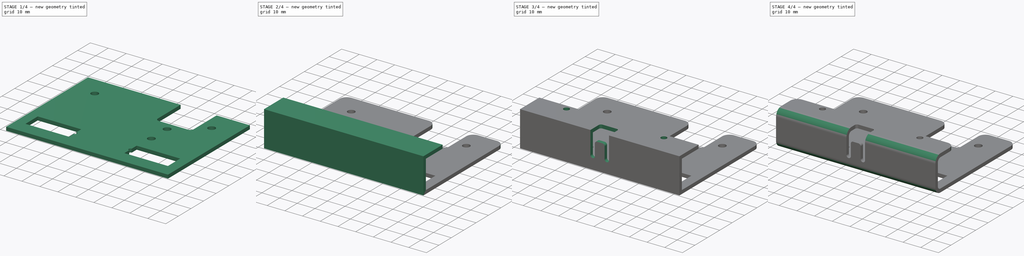
[diagram: build sequence overview — one tinted view per stage of 4, left to right]
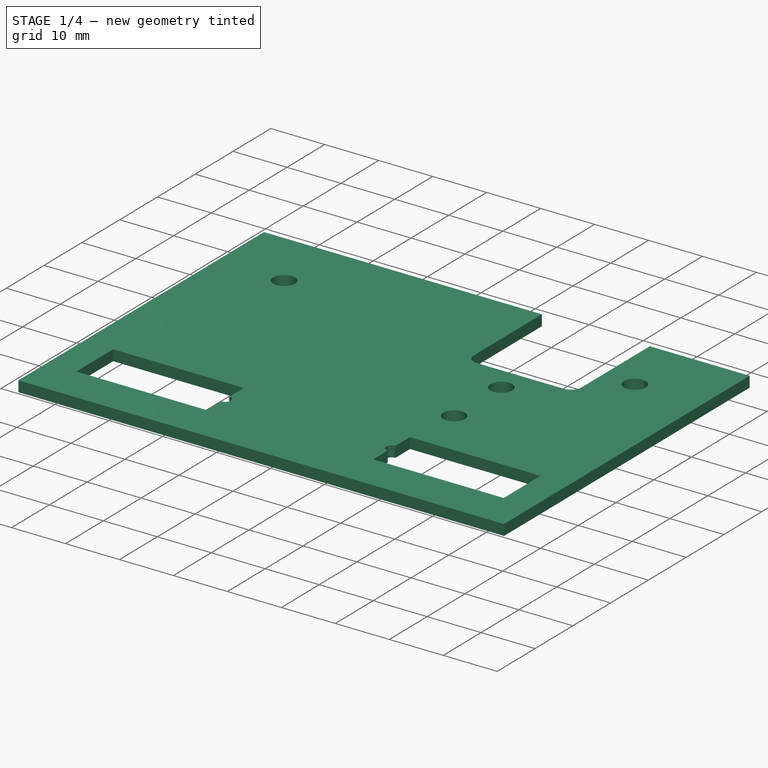
[diagram: stage 1 of 4 — iso view after this stage's code; geometry added in this stage tinted green]
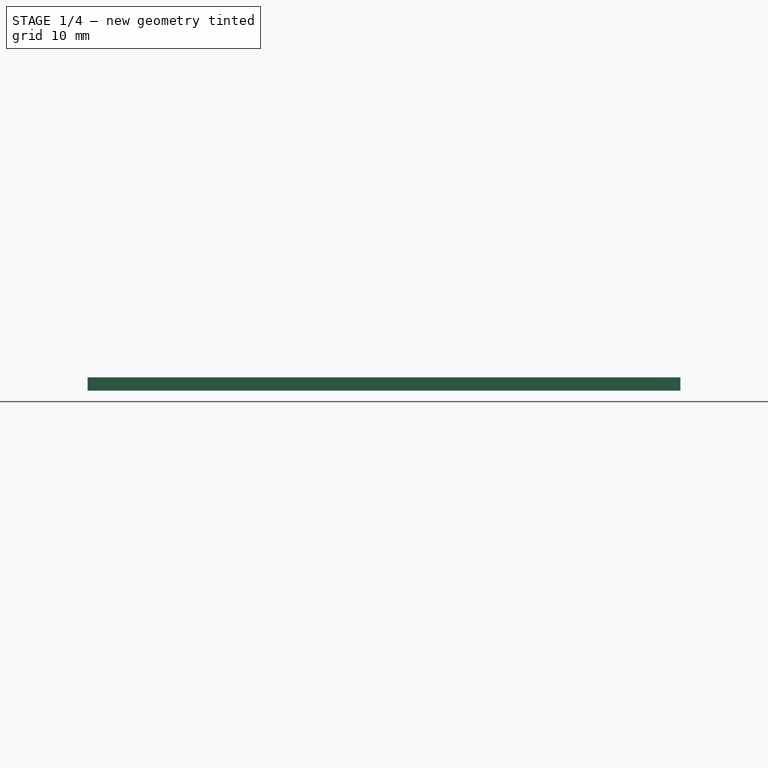
[diagram: stage 1 of 4 — front view after this stage's code; geometry added in this stage tinted green]
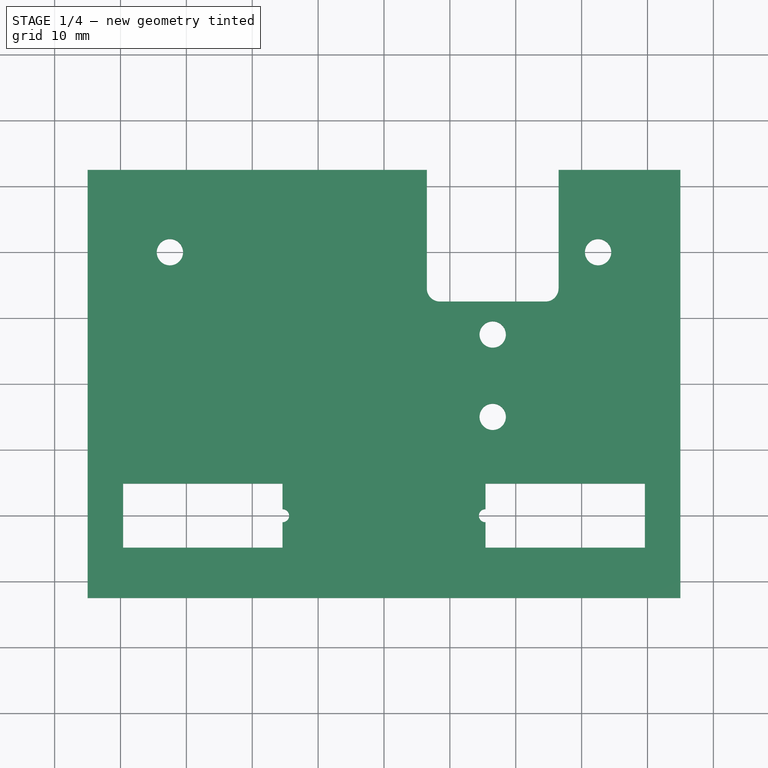
[diagram: stage 1 of 4 — top view after this stage's code; geometry added in this stage tinted green]
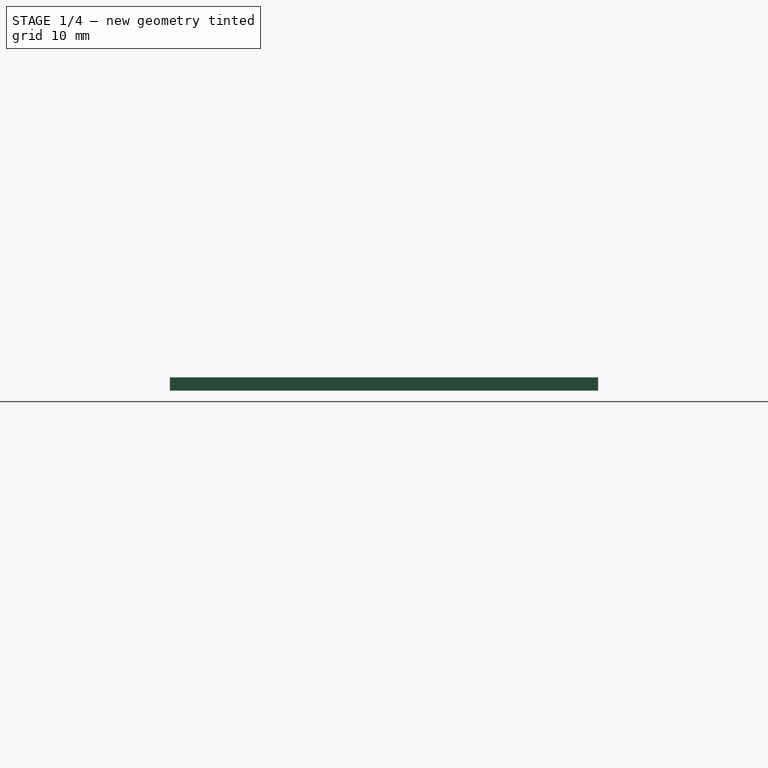
[diagram: stage 1 of 4 — right view after this stage's code; geometry added in this stage tinted green]
FCSTD DOCUMENT  (FreeCAD 0.14R3310 (Git))
Label: 72. PLACA LATERAL MOTOR_MIR
License: CC-BY 3.0
LicenseURL: http://creativecommons.org/licenses/by/3.0/
objects: Sketcher::SketchObject×5, PartDesign::Fillet×5, PartDesign::Pad×3, PartDesign::Pocket×2
note: 20 computed .brp shape members not serialized (recipe doc carries the construction recipe); baked Part::Feature solids carry a one-line shape summary decoded from their .brp

FEATURE [Sketcher::SketchObject] Sketch
  sketch-geometry (26):
    g0: LineSegment StartX=45 StartY=32.5 StartZ=0 EndX=45 EndY=-32.5 EndZ=0
    g1: LineSegment StartX=45 StartY=-32.5 StartZ=0 EndX=-45 EndY=-32.5 EndZ=0
    g2: LineSegment StartX=-45 StartY=-32.5 StartZ=0 EndX=-45 EndY=32.5 EndZ=0
    g3: Circle CenterX=-32.5 CenterY=20 CenterZ=0 NormalX=0 NormalY=0 NormalZ=1 Radius=2
    g4: Circle CenterX=32.5 CenterY=20 CenterZ=0 NormalX=0 NormalY=0 NormalZ=1 Radius=2
    g5: LineSegment StartX=26.5 StartY=32.5 StartZ=0 EndX=26.5 EndY=12.5 EndZ=0
    g6: LineSegment StartX=26.5 StartY=12.5 StartZ=0 EndX=6.5 EndY=12.5 EndZ=0
    g7: LineSegment StartX=6.5 StartY=12.5 StartZ=0 EndX=6.5 EndY=32.5 EndZ=0
    g8: LineSegment StartX=-45 StartY=32.5 StartZ=0 EndX=6.5 EndY=32.5 EndZ=0
    g9: LineSegment StartX=26.5 StartY=32.5 StartZ=0 EndX=45 EndY=32.5 EndZ=0
    g10: LineSegment StartX=-39.6 StartY=-15.12 StartZ=0 EndX=-15.4 EndY=-15.12 EndZ=0
    g11: LineSegment [constr] StartX=-15.4 StartY=-15.12 StartZ=0 EndX=-15.4 EndY=-24.87 EndZ=0
    g12: LineSegment StartX=-15.4 StartY=-24.87 StartZ=0 EndX=-39.6 EndY=-24.87 EndZ=0
    g13: LineSegment StartX=-39.6 StartY=-24.87 StartZ=0 EndX=-39.6 EndY=-15.12 EndZ=0
    g14: LineSegment StartX=15.4 StartY=-15.12 StartZ=0 EndX=39.6 EndY=-15.12 EndZ=0
    g15: LineSegment StartX=39.6 StartY=-15.12 StartZ=0 EndX=39.6 EndY=-24.87 EndZ=0
    g16: LineSegment StartX=39.6 StartY=-24.87 StartZ=0 EndX=15.4 EndY=-24.87 EndZ=0
    g17: LineSegment [constr] StartX=15.4 StartY=-24.87 StartZ=0 EndX=15.4 EndY=-15.12 EndZ=0
    g18: ArcOfCircle CenterX=-15.4 CenterY=-20 CenterZ=0 NormalX=0 NormalY=0 NormalZ=1 Radius=1 StartAngle=4.71239 EndAngle=7.85398
    g19: ArcOfCircle CenterX=15.4 CenterY=-20 CenterZ=0 NormalX=0 NormalY=0 NormalZ=1 Radius=1 StartAngle=1.5708 EndAngle=4.71239
    g20: LineSegment StartX=-15.4 StartY=-24.87 StartZ=0 EndX=-15.4 EndY=-21 EndZ=0
    g21: LineSegment StartX=15.4 StartY=-24.87 StartZ=0 EndX=15.4 EndY=-21 EndZ=0
    g22: LineSegment StartX=15.4 StartY=-19 StartZ=0 EndX=15.4 EndY=-15.12 EndZ=0
    g23: LineSegment StartX=-15.4 StartY=-19 StartZ=0 EndX=-15.4 EndY=-15.12 EndZ=0
    g24: Circle CenterX=16.5 CenterY=7.5 CenterZ=0 NormalX=0 NormalY=0 NormalZ=1 Radius=2
    g25: Circle CenterX=16.5 CenterY=-5 CenterZ=0 NormalX=0 NormalY=0 NormalZ=1 Radius=2
  constraints (74):
    c: Coincident(g0,g1)
    c: Coincident(g1,g2)
    c: Horizontal(g1)
    c: Vertical(g0)
    c: Vertical(g2)
    c: Symmetric(g0,g2,g-1)
    c: Distance(g0) = 65
    c: Coincident(g5,g6)
    c: Coincident(g6,g7)
    c: Horizontal(g6)
    c: Vertical(g5)
    c: Vertical(g7)
    c: Distance(g2) = 65
    c: Coincident(g8,g2)
    c: Coincident(g8,g7)
    c: Horizontal(g8)
    c: Coincident(g9,g5)
    c: Coincident(g9,g0)
    c: Horizontal(g9)
    c: Distance(g1) = 90
    c: Symmetric(g3,g4,g-2)
    c: Equal(g4,g3)
    c: Radius(g3) = 2
    c: Distance(g3,g8) = 12.5
    c: Distance(g3,g4) = 65
    c: Distance(g2,g7) = 51.5
    c: Distance(g6) = 20
    c: Distance(g7) = 20
    c: Coincident(g10,g11)
    c: Coincident(g11,g12)
    c: Coincident(g12,g13)
    c: Coincident(g13,g10)
    c: Horizontal(g10)
    c: Horizontal(g12)
    c: Vertical(g11)
    c: Vertical(g13)
    c: Coincident(g14,g15)
    c: Coincident(g15,g16)
    c: Coincident(g16,g17)
    c: Coincident(g17,g14)
    c: Horizontal(g14)
    c: Horizontal(g16)
    c: Vertical(g15)
    c: Vertical(g17)
    c: Symmetric(g16,g11,g-2)
    c: Symmetric(g14,g10,g-2)
    c: Distance(g10) = 24.2
    c: Distance(g13) = 9.75
    c: PointOnObject(g18,g11)
    c: PointOnObject(g18,g11)
    c: PointOnObject(g18,g11)
    c: PointOnObject(g19,g17)
    c: PointOnObject(g19,g17)
    c: PointOnObject(g19,g17)
    c: Equal(g18,g19)
    c: Radius(g18) = 1
    c: Coincident(g20,g11)
    c: Coincident(g20,g18)
    c: Coincident(g21,g19)
    c: Distance(g18,g12) = 4.87
    c: Distance(g12,g1) = 7.63
    c: Symmetric(g19,g18,g-2)
    c: Coincident(g16,g21)
    c: Distance(g19,g18) = 30.8
    c: Coincident(g22,g19)
    c: Coincident(g22,g14)
    c: Coincident(g23,g18)
    c: Coincident(g23,g10)
    c: Equal(g25,g24)
    c: Radius(g24) = 2
    c: Distance(g24,g5) = 10
    c: Distance(g25,g5) = 10
    c: Distance(g24,g6) = 5
    c: Distance(g25,g24) = 12.5
FEATURE [PartDesign::Pad] Pad
  Length = 2
  Length2 = 100
  Sketch = -> Sketch
  Type = 0
FEATURE [PartDesign::Fillet] Fillet
  Base = -> Pad [Edge20,Edge17]
  Radius = 0
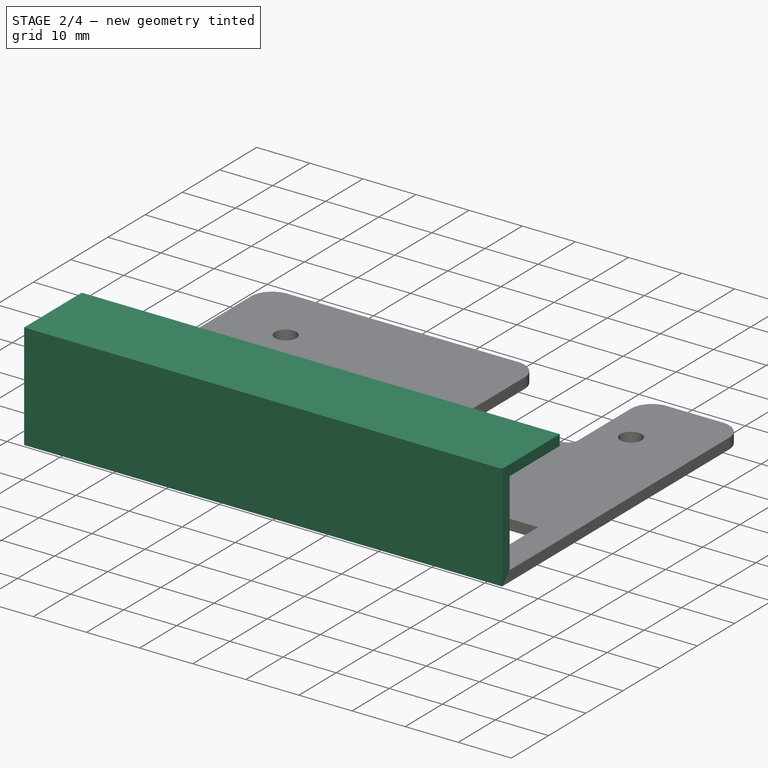
[diagram: stage 2 of 4 — iso view after this stage's code; geometry added in this stage tinted green]
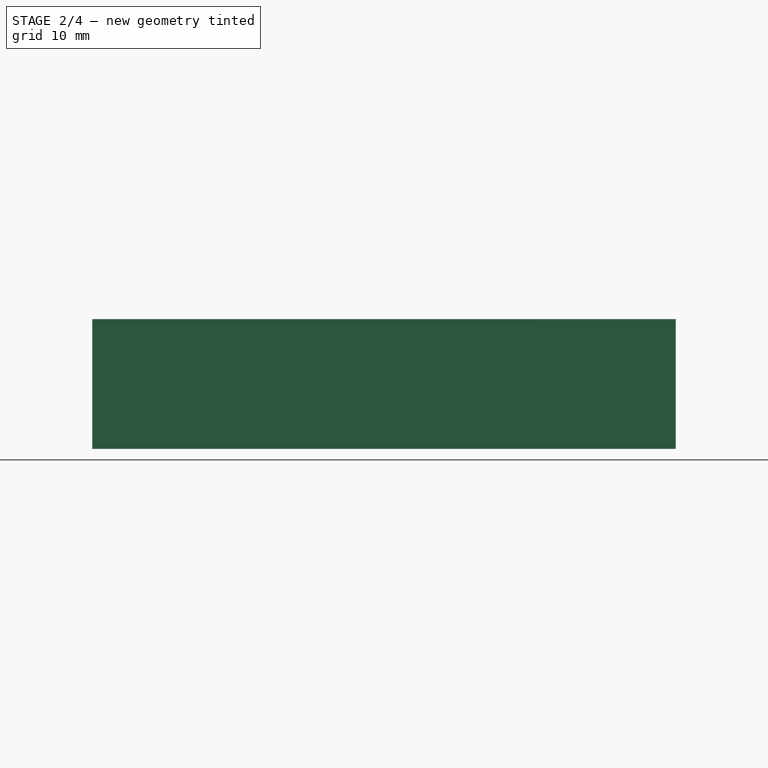
[diagram: stage 2 of 4 — front view after this stage's code; geometry added in this stage tinted green]
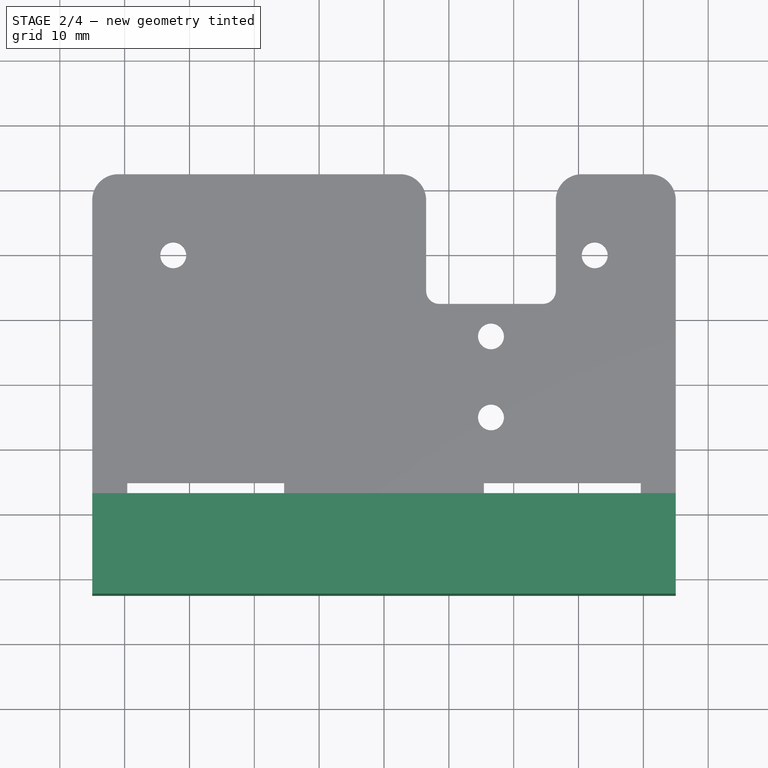
[diagram: stage 2 of 4 — top view after this stage's code; geometry added in this stage tinted green]
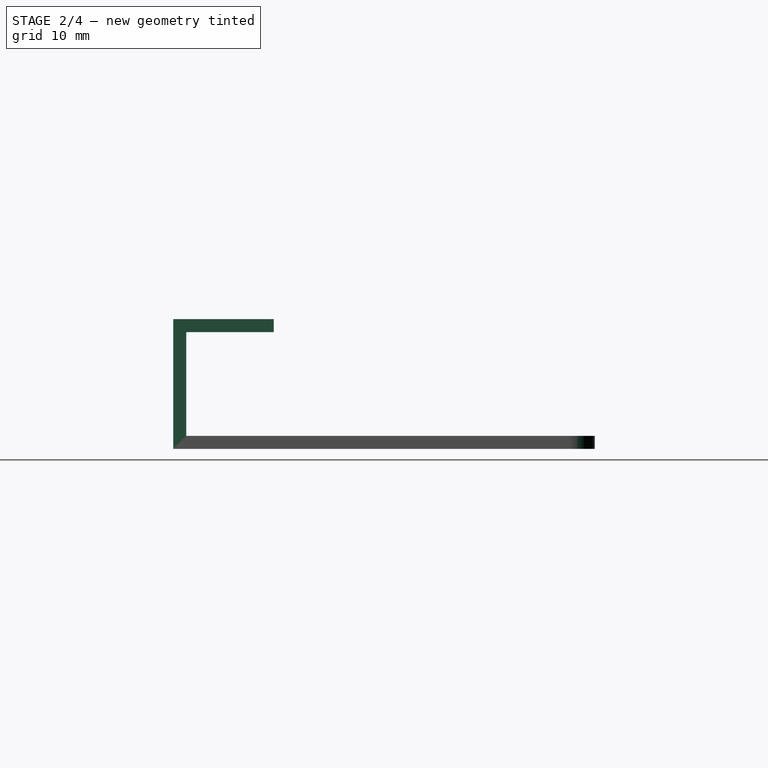
[diagram: stage 2 of 4 — right view after this stage's code; geometry added in this stage tinted green]
FEATURE [PartDesign::Fillet] Fillet001
  Base = -> Fillet [Edge62,Edge61,Edge3,Edge32]
  Radius = 4
FEATURE [Sketcher::SketchObject] Sketch001
  ExternalGeometry = -> [Fillet001]
  Placement = pos=(0,0,2) rot=(0,0,1;0rad)
  Support = -> Fillet001 [Face5]
  sketch-geometry (4):
    g0: LineSegment StartX=-45 StartY=-32.5 StartZ=0 EndX=45 EndY=-32.5 EndZ=0
    g1: LineSegment StartX=45 StartY=-32.5 StartZ=0 EndX=45 EndY=-30.5 EndZ=0
    g2: LineSegment StartX=45 StartY=-30.5 StartZ=0 EndX=-45 EndY=-30.5 EndZ=0
    g3: LineSegment StartX=-45 StartY=-30.5 StartZ=0 EndX=-45 EndY=-32.5 EndZ=0
  constraints (11):
    c: Coincident(g0,g1)
    c: Coincident(g1,g2)
    c: Coincident(g2,g3)
    c: Coincident(g3,g0)
    c: Horizontal(g0)
    c: Horizontal(g2)
    c: Vertical(g1)
    c: Vertical(g3)
    c: Coincident(g0,g-3)
    c: Coincident(g0,g-3)
    c: Distance(g3) = 2
FEATURE [PartDesign::Pad] Pad001
  Length = 16
  Length2 = 100
  Sketch = -> Sketch001
  Type = 0
FEATURE [Sketcher::SketchObject] Sketch002
  ExternalGeometry = -> [Pad001]
  Placement = pos=(0,0,18) rot=(0,0,1;0rad)
  Support = -> Pad001 [Face3]
  sketch-geometry (4):
    g0: LineSegment StartX=45 StartY=-32.5 StartZ=0 EndX=-45 EndY=-32.5 EndZ=0
    g1: LineSegment StartX=-45 StartY=-32.5 StartZ=0 EndX=-45 EndY=-17 EndZ=0
    g2: LineSegment StartX=-45 StartY=-17 StartZ=0 EndX=45 EndY=-17 EndZ=0
    g3: LineSegment StartX=45 StartY=-17 StartZ=0 EndX=45 EndY=-32.5 EndZ=0
  constraints (11):
    c: Coincident(g0,g1)
    c: Coincident(g1,g2)
    c: Coincident(g2,g3)
    c: Coincident(g3,g0)
    c: Horizontal(g0)
    c: Horizontal(g2)
    c: Vertical(g1)
    c: Vertical(g3)
    c: Coincident(g0,g-3)
    c: Coincident(g0,g-4)
    c: Distance(g1) = 15.5
FEATURE [PartDesign::Pad] Pad002
  Length = 2
  Length2 = 100
  Sketch = -> Sketch002
  Type = 0
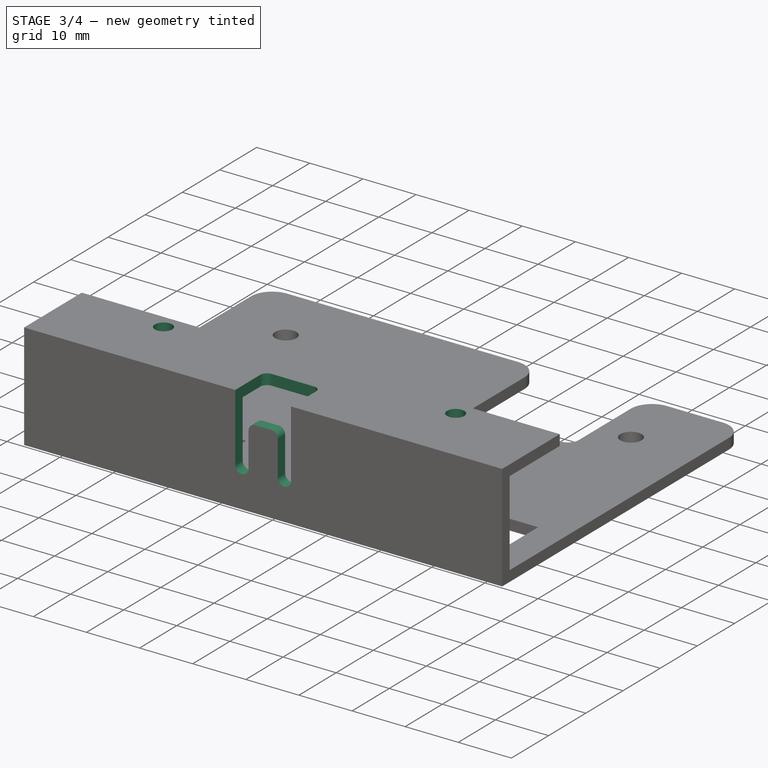
[diagram: stage 3 of 4 — iso view after this stage's code; geometry added in this stage tinted green]
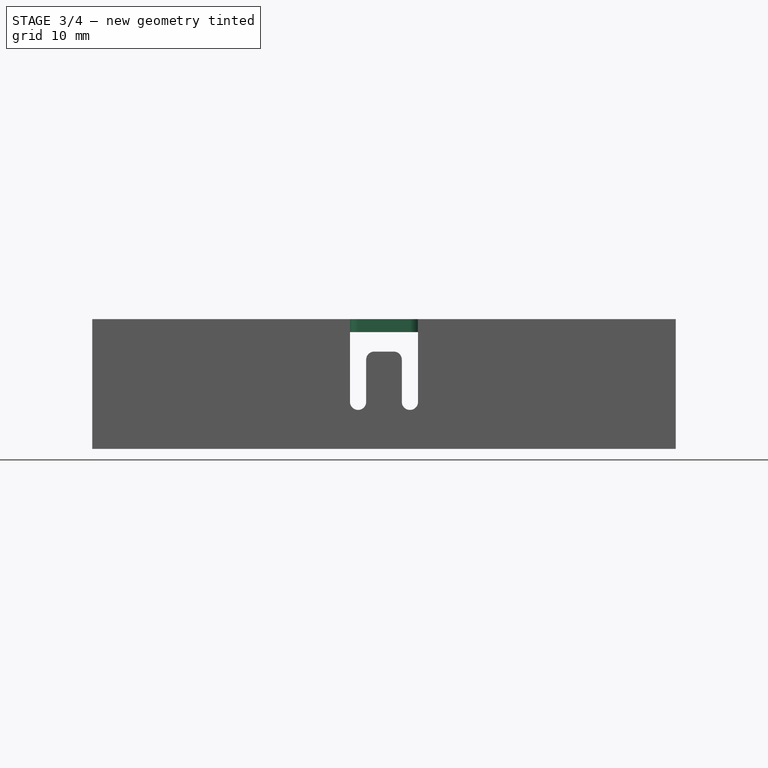
[diagram: stage 3 of 4 — front view after this stage's code; geometry added in this stage tinted green]
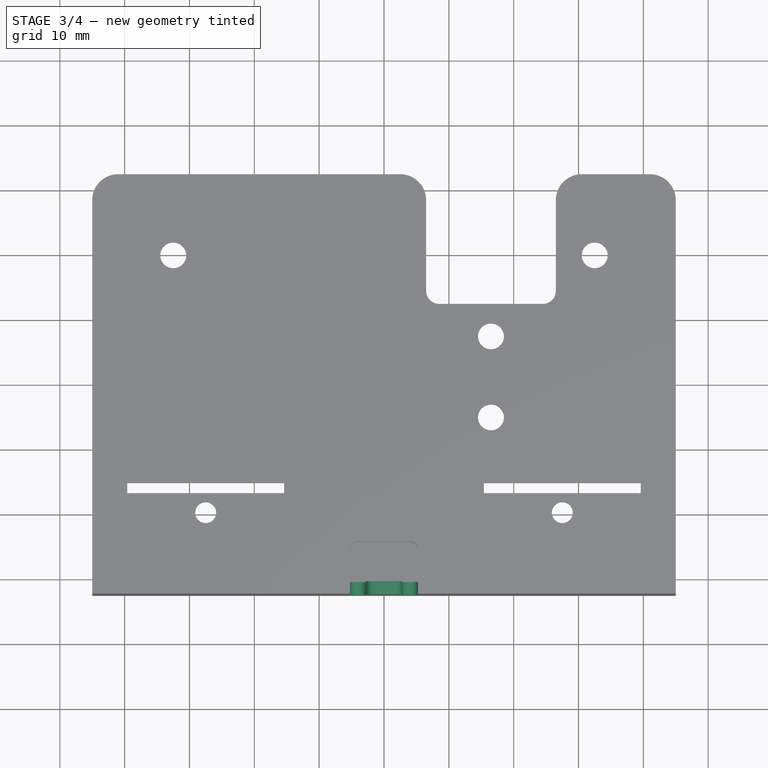
[diagram: stage 3 of 4 — top view after this stage's code; geometry added in this stage tinted green]
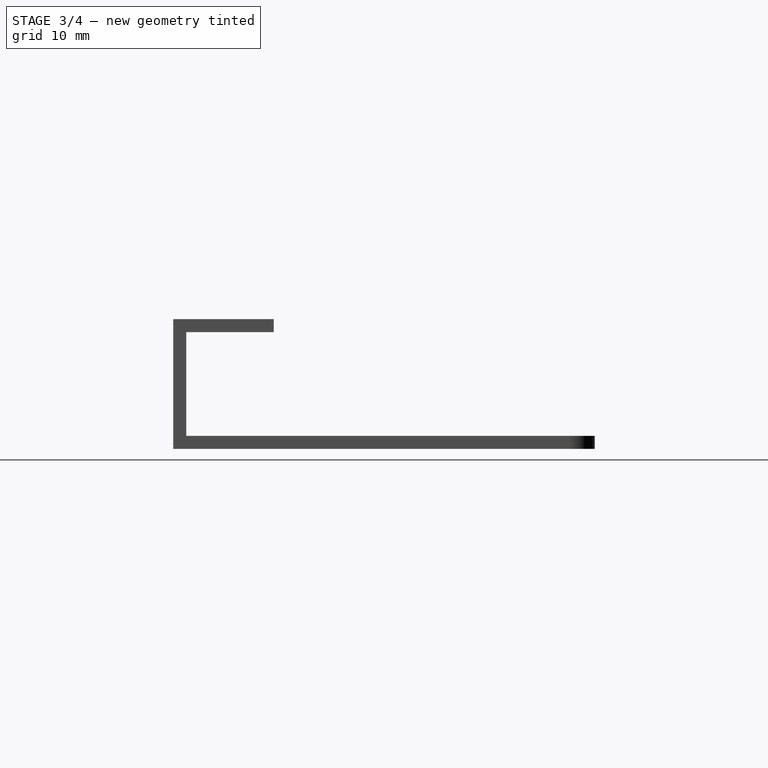
[diagram: stage 3 of 4 — right view after this stage's code; geometry added in this stage tinted green]
FEATURE [Sketcher::SketchObject] Sketch003
  ExternalGeometry = -> [Pad002]
  Placement = pos=(0,0,20) rot=(0,0,1;0rad)
  Support = -> Pad002 [Face33]
  sketch-geometry (2):
    g0: Circle CenterX=-27.5 CenterY=-20 CenterZ=0 NormalX=0 NormalY=0 NormalZ=1 Radius=1.62
    g1: Circle CenterX=27.5 CenterY=-20 CenterZ=0 NormalX=0 NormalY=0 NormalZ=1 Radius=1.62
  constraints (5):
    c: Symmetric(g1,g0,g-2)
    c: Equal(g0,g1)
    c: Radius(g0) = 1.62
    c: Distance(g0,g1) = 55
    c: Distance(g0,g-3) = 3
FEATURE [PartDesign::Pocket] Pocket
  Length = 5
  Sketch = -> Sketch003
  Type = 0
FEATURE [Sketcher::SketchObject] Sketch004
  ExternalGeometry = -> [Pocket]
  Placement = pos=(0,-32.5,0) rot=(1,0,0;1.5708rad)
  Support = -> Pocket [Face11]
  sketch-geometry (8):
    g0: LineSegment StartX=-5.25 StartY=20 StartZ=0 EndX=5.25 EndY=20 EndZ=0
    g1: LineSegment StartX=-5.25 StartY=20 StartZ=0 EndX=-5.25 EndY=7.25 EndZ=0
    g2: LineSegment StartX=5.25 StartY=20 StartZ=0 EndX=5.25 EndY=7.25 EndZ=0
    g3: ArcOfCircle CenterX=-4 CenterY=7.25 CenterZ=0 NormalX=0 NormalY=0 NormalZ=1 Radius=1.25 StartAngle=3.14159 EndAngle=6.28319
    g4: ArcOfCircle CenterX=4 CenterY=7.24999 CenterZ=0 NormalX=0 NormalY=0 NormalZ=1 Radius=1.25 StartAngle=3.14159 EndAngle=6.28319
    g5: LineSegment StartX=2.75 StartY=7.24999 StartZ=0 EndX=2.75 EndY=15 EndZ=0
    g6: LineSegment StartX=-2.75 StartY=7.25 StartZ=0 EndX=-2.75 EndY=15 EndZ=0
    g7: LineSegment StartX=-2.75 StartY=15 StartZ=0 EndX=2.75 EndY=15 EndZ=0
  constraints (26):
    c: PointOnObject(g0,g-3)
    c: PointOnObject(g0,g-3)
    c: Symmetric(g0,g0,g-2)
    c: Distance(g0,g0) = 10.5
    c: Coincident(g1,g0)
    c: Vertical(g1)
    c: Coincident(g2,g0)
    c: Vertical(g2)
    c: Coincident(g3,g1)
    c: Coincident(g4,g2)
    c: Tangent(g4,g2)
    c: Tangent(g3,g1)
    c: Equal(g1,g2)
    c: Distance(g1) = 12.75
    c: Radius(g3) = 1.25
    c: Equal(g4,g3)
    c: Coincident(g5,g4)
    c: Vertical(g5)
    c: Tangent(g4,g5)
    c: Coincident(g6,g3)
    c: Vertical(g6)
    c: Tangent(g3,g6)
    c: Coincident(g7,g6)
    c: Horizontal(g7)
    c: Coincident(g5,g7)
    c: Distance(g5,g0) = 5
FEATURE [PartDesign::Pocket] Pocket001
  Length = 8
  Sketch = -> Sketch004
  Type = 0
FEATURE [PartDesign::Fillet] Fillet002
  Base = -> Pocket001 [Edge133,Edge132,Edge130,Edge136]
  Radius = 1.25
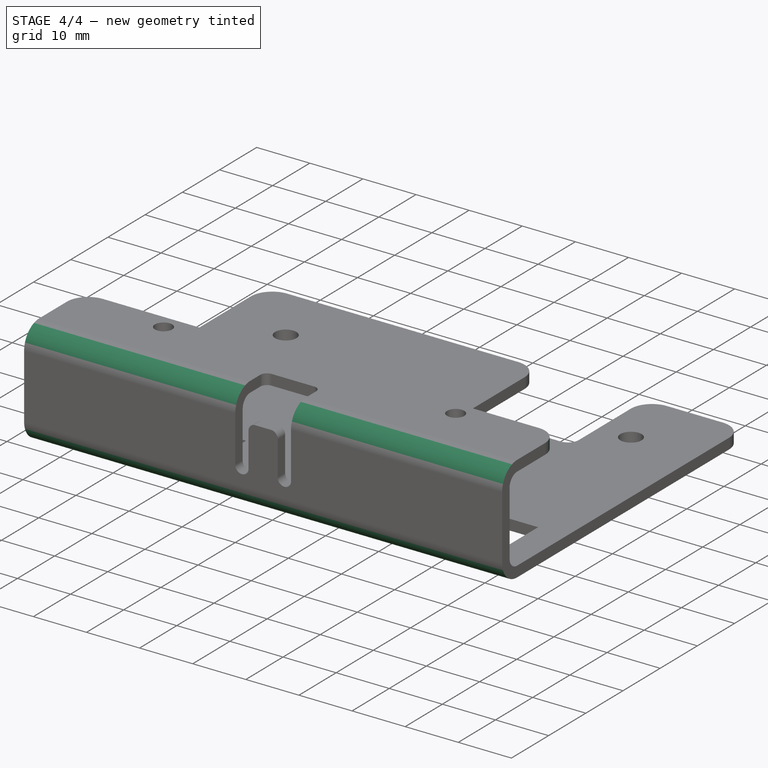
[diagram: stage 4 of 4 — iso view after this stage's code; geometry added in this stage tinted green]
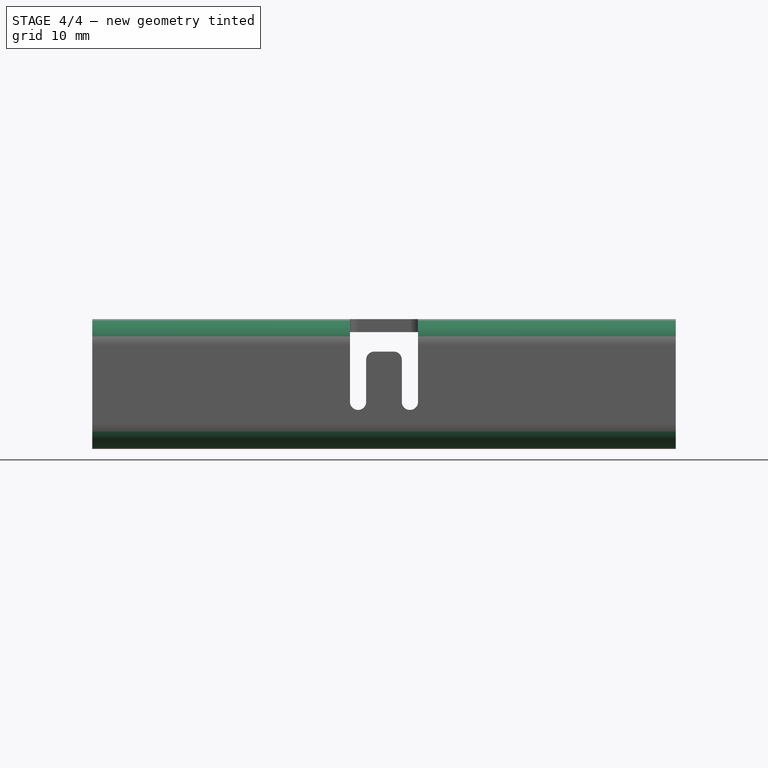
[diagram: stage 4 of 4 — front view after this stage's code; geometry added in this stage tinted green]
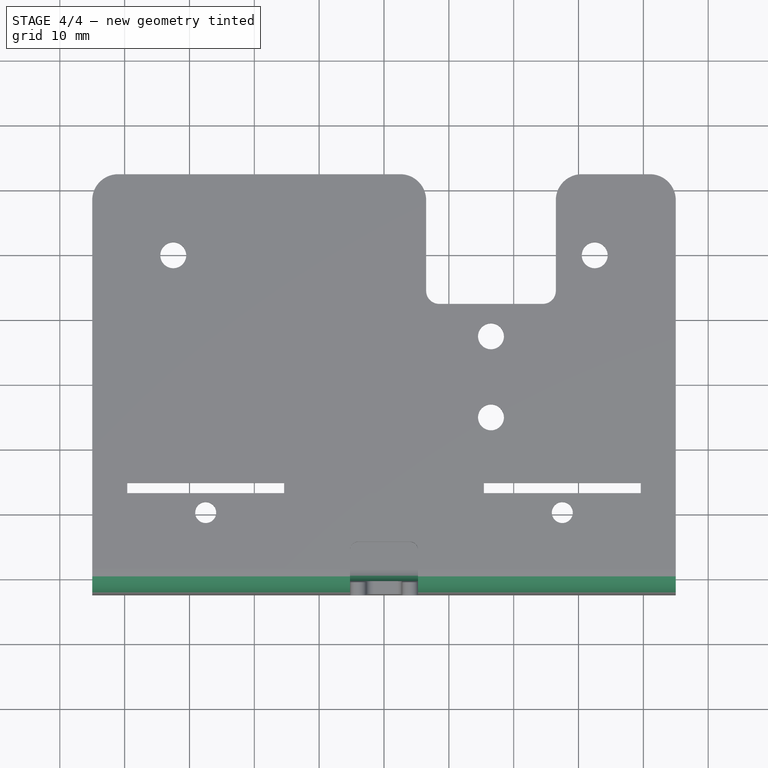
[diagram: stage 4 of 4 — top view after this stage's code; geometry added in this stage tinted green]
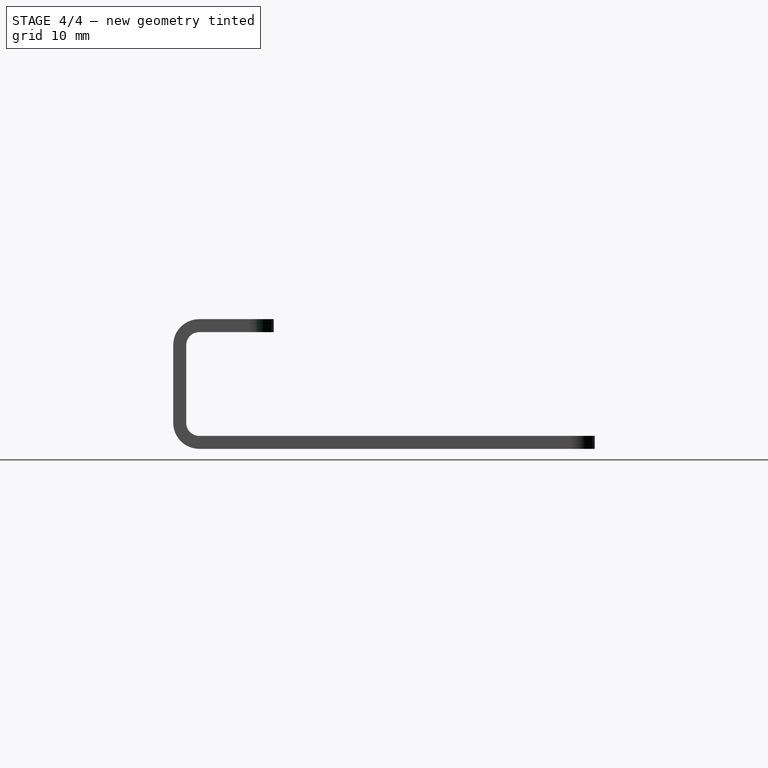
[diagram: stage 4 of 4 — right view after this stage's code; geometry added in this stage tinted green]
FEATURE [PartDesign::Fillet] Fillet003
  Base = -> Fillet002 [Edge84,Edge14,Edge7,Edge45,Edge11]
  Radius = 4
FEATURE [PartDesign::Fillet] Fillet004
  Base = -> Fillet003 [Edge77,Edge72,Edge80]
  Radius = 2
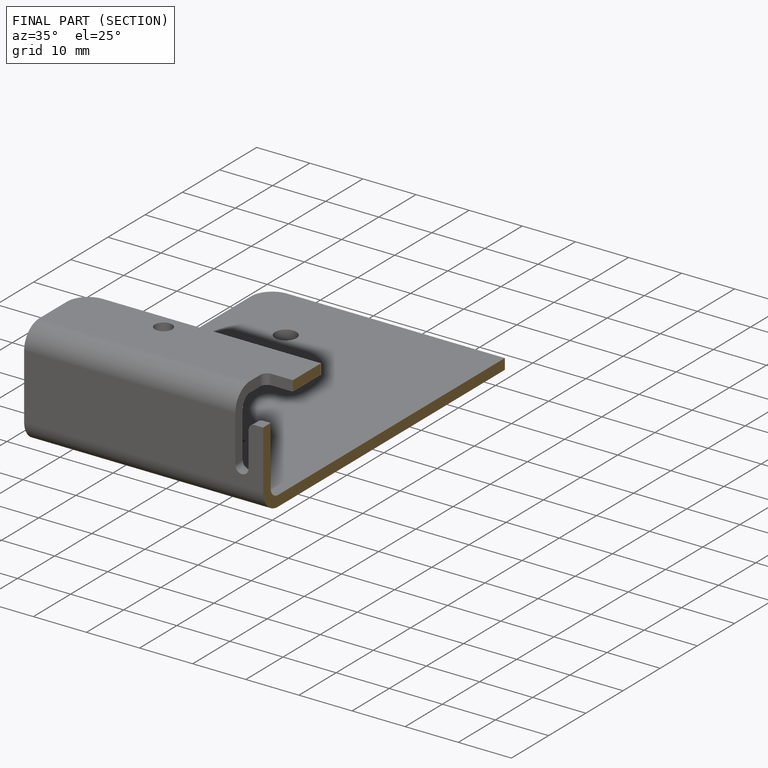
[diagram: finished part — half-section view (interior)]
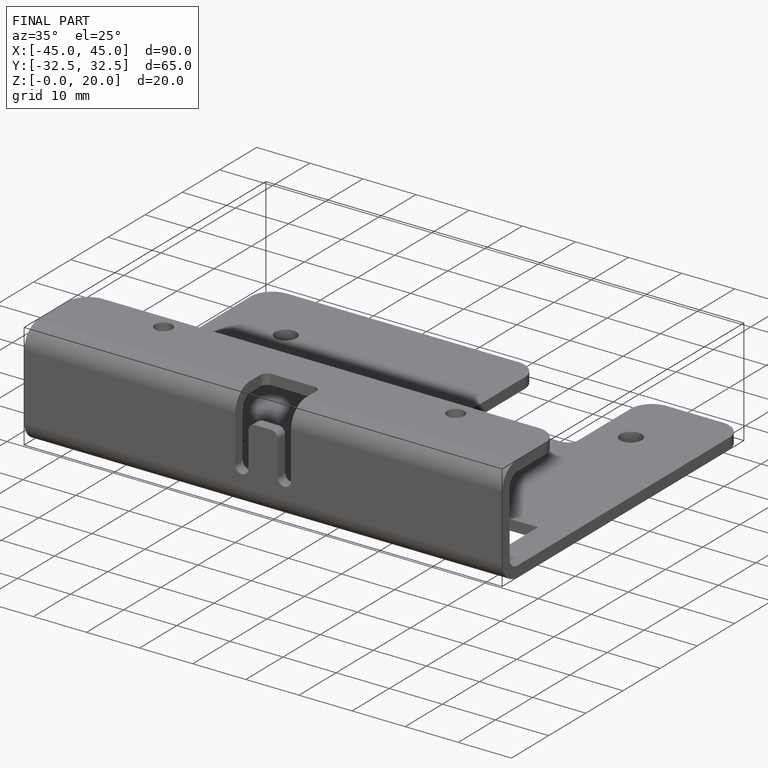
[diagram: finished part — iso view with bounding-box wireframe]
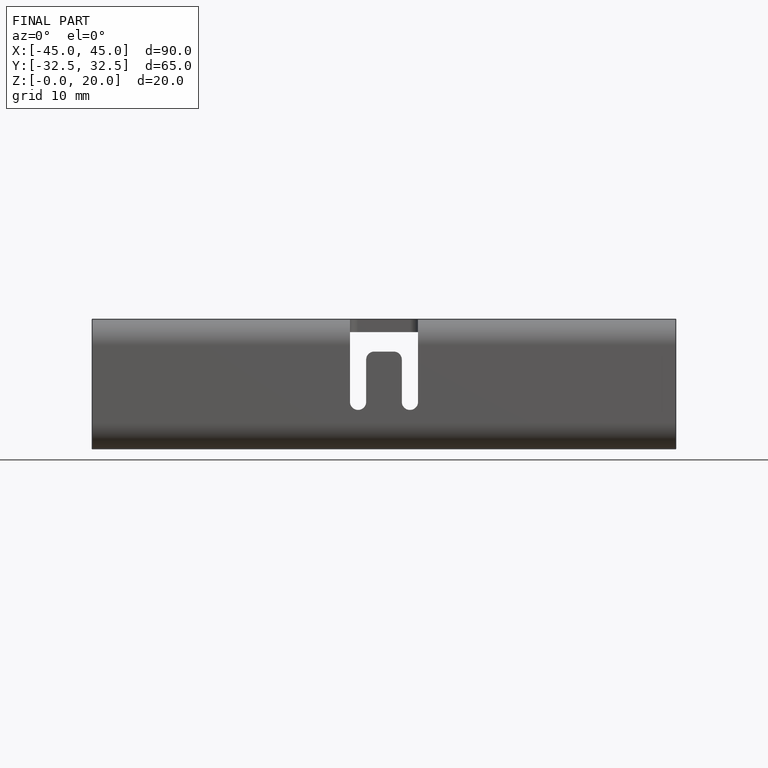
[diagram: finished part — front view with bounding-box wireframe]
